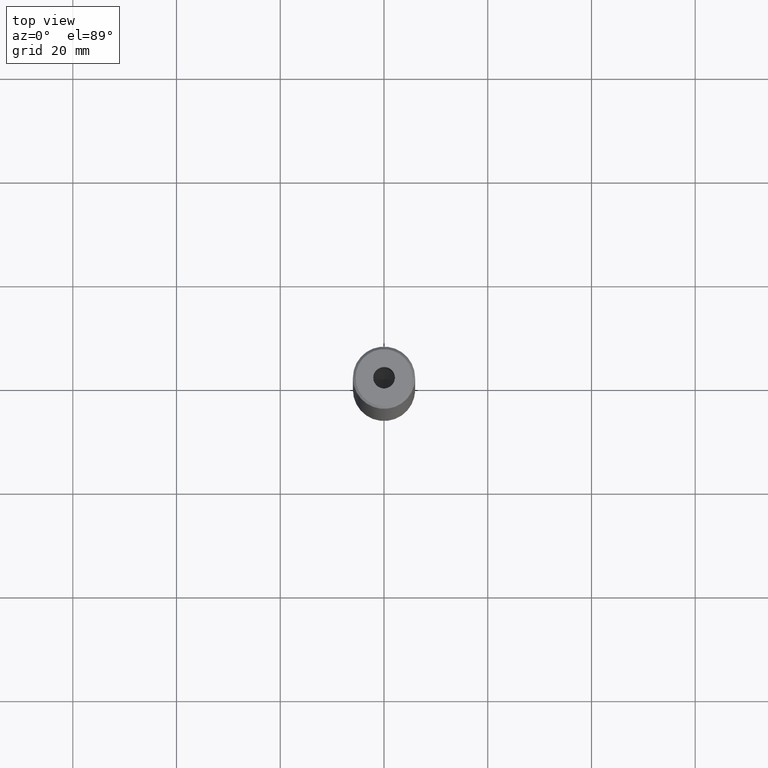
[diagram: clean part render]
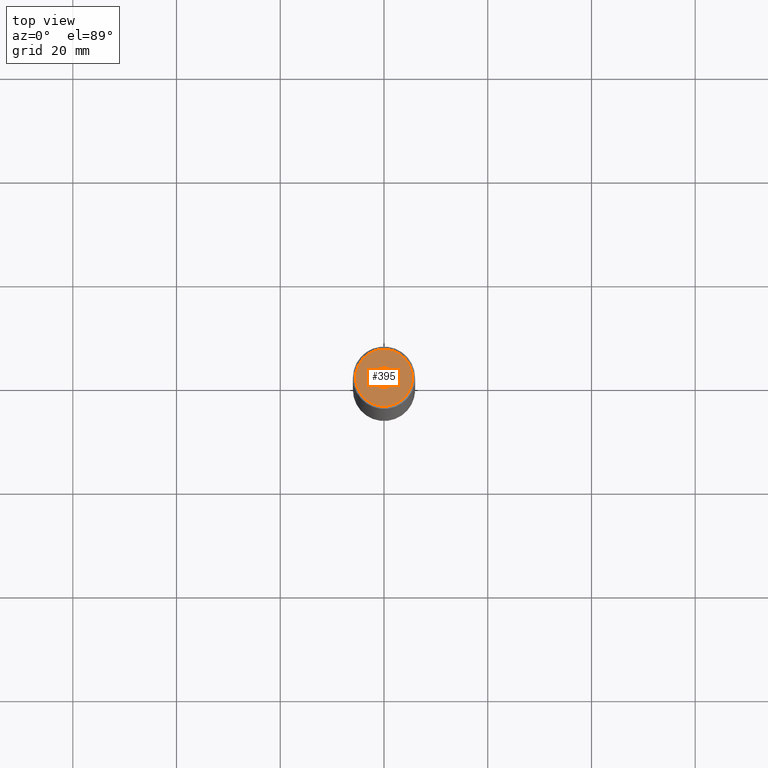
[diagram: same view with one face highlighted and labeled with its STEP entity id]
A machine part, top view. The second image highlights one B-rep face of the part: STEP entity #395.
In plain terms, the highlighted planar face has unit normal (0, -0, 1).
Its self-contained STEP definition (entity closure, byte-faithful):
#15 = DIRECTION ( 'NONE',  ( 1.000000000000000000, 0.000000000000000000, 0.000000000000000000 ) ) ;
#23 = AXIS2_PLACEMENT_3D ( 'NONE', #586, #501, #324 ) ;
#39 = VERTEX_POINT ( 'NONE', #280 ) ;
#93 = CIRCLE ( 'NONE', #23, 2.099999999999998757 ) ;
#111 = DIRECTION ( 'NONE',  ( 0.000000000000000000, -0.000000000000000000, 1.000000000000000000 ) ) ;
#116 = FACE_BOUND ( 'NONE', #486, .T. ) ;
#119 = CARTESIAN_POINT ( 'NONE',  ( 0.000000000000000000, 0.000000000000000000, 0.000000000000000000 ) ) ;
#123 = DIRECTION ( 'NONE',  ( 1.000000000000000000, 0.000000000000000000, 0.000000000000000000 ) ) ;
#141 = CIRCLE ( 'NONE', #182, 2.099999999999998757 ) ;
#142 = VERTEX_POINT ( 'NONE', #387 ) ;
#161 = EDGE_CURVE ( 'NONE', #312, #142, #432, .T. ) ;
#169 = ORIENTED_EDGE ( 'NONE', *, *, #564, .F. ) ;
#180 = AXIS2_PLACEMENT_3D ( 'NONE', #119, #197, #243 ) ;
#182 = AXIS2_PLACEMENT_3D ( 'NONE', #351, #520, #123 ) ;
#193 = VERTEX_POINT ( 'NONE', #201 ) ;
#197 = DIRECTION ( 'NONE',  ( -0.000000000000000000, -0.000000000000000000, 1.000000000000000000 ) ) ;
#201 = CARTESIAN_POINT ( 'NONE',  ( -2.099999999999998757, 2.571758278209439985E-16, -1.990051048614449116E-16 ) ) ;
#220 = CARTESIAN_POINT ( 'NONE',  ( 5.500000000000031974, 7.041719095097299615E-16, 0.000000000000000000 ) ) ;
#243 = DIRECTION ( 'NONE',  ( 1.000000000000000000, 0.000000000000000000, 0.000000000000000000 ) ) ;
#245 = DIRECTION ( 'NONE',  ( -0.000000000000000000, -0.000000000000000000, 1.000000000000000000 ) ) ;
#268 = ORIENTED_EDGE ( 'NONE', *, *, #161, .T. ) ;
#280 = CARTESIAN_POINT ( 'NONE',  ( 2.099999999999998757, 0.000000000000000000, -1.990051048614449116E-16 ) ) ;
#289 = DIRECTION ( 'NONE',  ( 1.000000000000000000, 0.000000000000000000, 0.000000000000000000 ) ) ;
#293 = AXIS2_PLACEMENT_3D ( 'NONE', #516, #245, #15 ) ;
#312 = VERTEX_POINT ( 'NONE', #220 ) ;
#324 = DIRECTION ( 'NONE',  ( 1.000000000000000000, 0.000000000000000000, 0.000000000000000000 ) ) ;
#336 = ORIENTED_EDGE ( 'NONE', *, *, #371, .T. ) ;
#346 = PLANE ( 'NONE',  #514 ) ;
#351 = CARTESIAN_POINT ( 'NONE',  ( 0.000000000000000000, 0.000000000000000000, -1.990051048614449116E-16 ) ) ;
#371 = EDGE_CURVE ( 'NONE', #142, #312, #541, .T. ) ;
#387 = CARTESIAN_POINT ( 'NONE',  ( -5.500000000000031974, 0.000000000000000000, 0.000000000000000000 ) ) ;
#395 = ADVANCED_FACE ( 'NONE', ( #116, #481 ), #346, .T. ) ;
#432 = CIRCLE ( 'NONE', #180, 5.500000000000031974 ) ;
#440 = EDGE_LOOP ( 'NONE', ( #336, #268 ) ) ;
#481 = FACE_OUTER_BOUND ( 'NONE', #440, .T. ) ;
#486 = EDGE_LOOP ( 'NONE', ( #169, #524 ) ) ;
#493 = EDGE_CURVE ( 'NONE', #193, #39, #141, .T. ) ;
#501 = DIRECTION ( 'NONE',  ( -0.000000000000000000, -0.000000000000000000, 1.000000000000000000 ) ) ;
#514 = AXIS2_PLACEMENT_3D ( 'NONE', #558, #111, #289 ) ;
#516 = CARTESIAN_POINT ( 'NONE',  ( 0.000000000000000000, 0.000000000000000000, 0.000000000000000000 ) ) ;
#520 = DIRECTION ( 'NONE',  ( -0.000000000000000000, -0.000000000000000000, 1.000000000000000000 ) ) ;
#524 = ORIENTED_EDGE ( 'NONE', *, *, #493, .F. ) ;
#541 = CIRCLE ( 'NONE', #293, 5.500000000000031974 ) ;
#558 = CARTESIAN_POINT ( 'NONE',  ( 0.000000000000000000, 0.000000000000000000, 0.000000000000000000 ) ) ;
#564 = EDGE_CURVE ( 'NONE', #39, #193, #93, .T. ) ;
#586 = CARTESIAN_POINT ( 'NONE',  ( 0.000000000000000000, 0.000000000000000000, -1.990051048614449116E-16 ) ) ;